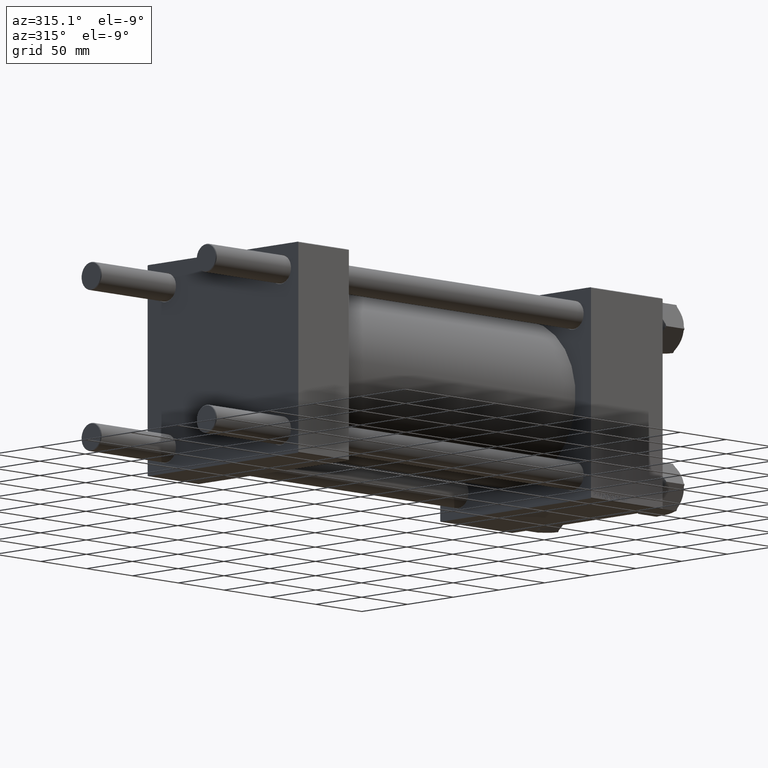
[diagram: clean part render]
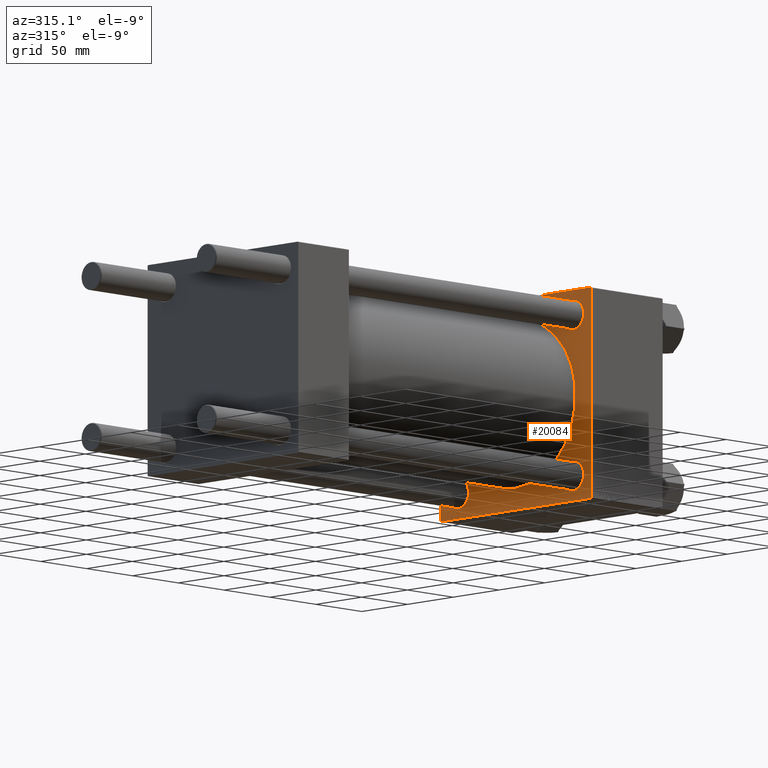
[diagram: same view with one face highlighted and labeled with its STEP entity id]
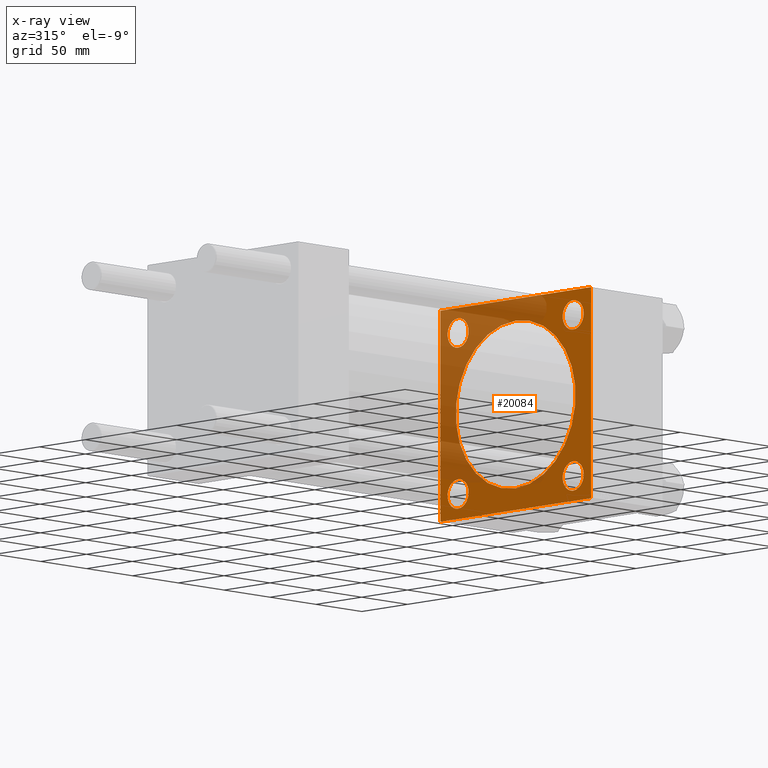
[diagram: x-ray of the same camera — body ghosted, the highlighted face saturated]
A machine part, auxiliary view. The second image highlights one B-rep face of the part: STEP entity #20084.
The next image is the same camera in x-ray: the body ghosted, the highlighted face saturated — about 41% of this face is hidden behind the body in this view.
In plain terms, the highlighted planar face has unit normal (-1, 0, 0).
Its self-contained STEP definition (entity closure, byte-faithful):
#136 = AXIS2_PLACEMENT_3D ( 'NONE', #29384, #49007, #44187 ) ;
#465 = CARTESIAN_POINT ( 'NONE',  ( 319.0000000000000000, -81.99999999999995737, 82.49999999999997158 ) ) ;
#1452 = ORIENTED_EDGE ( 'NONE', *, *, #11687, .T. ) ;
#1697 = CIRCLE ( 'NONE', #35151, 11.50000000000001066 ) ;
#2454 = DIRECTION ( 'NONE',  ( 1.000000000000000000, 0.000000000000000000, -0.000000000000000000 ) ) ;
#2587 = CARTESIAN_POINT ( 'NONE',  ( 319.0000000000000000, -62.94999999999998153, -51.45000000000000995 ) ) ;
#3429 = CIRCLE ( 'NONE', #136, 65.50000000000001421 ) ;
#4310 = CIRCLE ( 'NONE', #44238, 65.50000000000001421 ) ;
#5450 = DIRECTION ( 'NONE',  ( 0.000000000000000000, 0.000000000000000000, 1.000000000000000000 ) ) ;
#5629 = CARTESIAN_POINT ( 'NONE',  ( 319.0000000000000000, 62.95000000000000284, -62.95000000000000284 ) ) ;
#5926 = LINE ( 'NONE', #41373, #10038 ) ;
#6199 = FACE_BOUND ( 'NONE', #38117, .T. ) ;
#6725 = LINE ( 'NONE', #46020, #11547 ) ;
#7055 = ORIENTED_EDGE ( 'NONE', *, *, #32711, .F. ) ;
#7744 = LINE ( 'NONE', #27151, #8973 ) ;
#8258 = DIRECTION ( 'NONE',  ( 0.000000000000000000, -1.682156097916903834E-16, -1.000000000000000000 ) ) ;
#8596 = CARTESIAN_POINT ( 'NONE',  ( 319.0000000000000000, 62.95000000000000284, -74.45000000000001705 ) ) ;
#8634 = ORIENTED_EDGE ( 'NONE', *, *, #13524, .T. ) ;
#8635 = ORIENTED_EDGE ( 'NONE', *, *, #42492, .T. ) ;
#8973 = VECTOR ( 'NONE', #8258, 1000.000000000000000 ) ;
#9463 = CARTESIAN_POINT ( 'NONE',  ( 319.0000000000000000, 82.00000000000001421, 82.50000000000000000 ) ) ;
#9742 = CARTESIAN_POINT ( 'NONE',  ( 319.0000000000000000, -81.99999999999998579, -82.50000000000002842 ) ) ;
#10038 = VECTOR ( 'NONE', #17649, 1000.000000000000000 ) ;
#10129 = ORIENTED_EDGE ( 'NONE', *, *, #40427, .T. ) ;
#10287 = FACE_BOUND ( 'NONE', #38083, .T. ) ;
#10584 = VECTOR ( 'NONE', #36556, 1000.000000000000000 ) ;
#10869 = ORIENTED_EDGE ( 'NONE', *, *, #22886, .F. ) ;
#10933 = CARTESIAN_POINT ( 'NONE',  ( 319.0000000000000000, -62.94999999999998153, 74.44999999999991758 ) ) ;
#11098 = VERTEX_POINT ( 'NONE', #36067 ) ;
#11322 = VERTEX_POINT ( 'NONE', #465 ) ;
#11547 = VECTOR ( 'NONE', #18721, 1000.000000000000114 ) ;
#11651 = EDGE_LOOP ( 'NONE', ( #13823, #42025, #7055, #1452, #10869, #47842, #19361, #34831 ) ) ;
#11687 = EDGE_CURVE ( 'NONE', #47919, #11322, #13144, .T. ) ;
#11699 = CARTESIAN_POINT ( 'NONE',  ( 319.0000000000000000, 0.000000000000000000, 0.000000000000000000 ) ) ;
#11781 = EDGE_CURVE ( 'NONE', #49852, #45481, #26940, .T. ) ;
#12081 = CARTESIAN_POINT ( 'NONE',  ( 319.0000000000000000, -62.94999999999998153, -62.95000000000001705 ) ) ;
#13144 = LINE ( 'NONE', #36136, #49706 ) ;
#13524 = EDGE_CURVE ( 'NONE', #39465, #15963, #1697, .T. ) ;
#13598 = FACE_OUTER_BOUND ( 'NONE', #11651, .T. ) ;
#13823 = ORIENTED_EDGE ( 'NONE', *, *, #21329, .T. ) ;
#13858 = FACE_BOUND ( 'NONE', #35806, .T. ) ;
#14001 = EDGE_CURVE ( 'NONE', #15963, #39465, #15572, .T. ) ;
#14122 = FACE_BOUND ( 'NONE', #22443, .T. ) ;
#14127 = LINE ( 'NONE', #29185, #44940 ) ;
#14195 = DIRECTION ( 'NONE',  ( 0.000000000000000000, 0.000000000000000000, 1.000000000000000000 ) ) ;
#14793 = VECTOR ( 'NONE', #18205, 1000.000000000000114 ) ;
#14951 = CARTESIAN_POINT ( 'NONE',  ( 319.0000000000000000, -62.94999999999998153, -62.95000000000001705 ) ) ;
#15572 = CIRCLE ( 'NONE', #35991, 11.50000000000001066 ) ;
#15963 = VERTEX_POINT ( 'NONE', #20424 ) ;
#16344 = AXIS2_PLACEMENT_3D ( 'NONE', #12081, #23573, #42451 ) ;
#16520 = DIRECTION ( 'NONE',  ( 0.000000000000000000, 0.000000000000000000, 1.000000000000000000 ) ) ;
#16765 = ORIENTED_EDGE ( 'NONE', *, *, #29914, .T. ) ;
#16846 = ORIENTED_EDGE ( 'NONE', *, *, #11781, .T. ) ;
#16935 = DIRECTION ( 'NONE',  ( 1.000000000000000000, 0.000000000000000000, -0.000000000000000000 ) ) ;
#17013 = CARTESIAN_POINT ( 'NONE',  ( 319.0000000000000000, 82.50000000000001421, -82.50000000000002842 ) ) ;
#17312 = AXIS2_PLACEMENT_3D ( 'NONE', #43810, #35925, #16520 ) ;
#17440 = CARTESIAN_POINT ( 'NONE',  ( 319.0000000000000000, -62.94999999999998153, 62.95000000000001705 ) ) ;
#17463 = VERTEX_POINT ( 'NONE', #25654 ) ;
#17649 = DIRECTION ( 'NONE',  ( 0.000000000000000000, -1.000000000000000000, -1.682156097916904081E-16 ) ) ;
#18205 = DIRECTION ( 'NONE',  ( 0.000000000000000000, 0.7071067811865474617, -0.7071067811865474617 ) ) ;
#18721 = DIRECTION ( 'NONE',  ( -0.000000000000000000, -0.7071067811865474617, -0.7071067811865474617 ) ) ;
#19355 = VERTEX_POINT ( 'NONE', #9463 ) ;
#19361 = ORIENTED_EDGE ( 'NONE', *, *, #32019, .T. ) ;
#19459 = AXIS2_PLACEMENT_3D ( 'NONE', #5629, #21206, #28878 ) ;
#20084 = ADVANCED_FACE ( 'NONE', ( #13858, #25613, #6199, #10287, #14122, #13598 ), #44993, .T. ) ;
#20424 = CARTESIAN_POINT ( 'NONE',  ( 319.0000000000000000, 62.95000000000000284, 51.44999999999999574 ) ) ;
#21206 = DIRECTION ( 'NONE',  ( 1.000000000000000000, 0.000000000000000000, -0.000000000000000000 ) ) ;
#21329 = EDGE_CURVE ( 'NONE', #17463, #29000, #47655, .T. ) ;
#21370 = EDGE_CURVE ( 'NONE', #23692, #41919, #45045, .T. ) ;
#21709 = DIRECTION ( 'NONE',  ( 1.000000000000000000, 0.000000000000000000, -0.000000000000000000 ) ) ;
#21898 = CARTESIAN_POINT ( 'NONE',  ( 319.0000000000000000, -62.94999999999998153, -74.45000000000003126 ) ) ;
#21994 = EDGE_CURVE ( 'NONE', #36710, #22628, #4310, .T. ) ;
#22303 = CARTESIAN_POINT ( 'NONE',  ( 319.0000000000000000, 62.95000000000000284, 62.95000000000000284 ) ) ;
#22443 = EDGE_LOOP ( 'NONE', ( #10129, #25359 ) ) ;
#22628 = VERTEX_POINT ( 'NONE', #34315 ) ;
#22886 = EDGE_CURVE ( 'NONE', #19355, #11322, #5926, .T. ) ;
#23428 = CARTESIAN_POINT ( 'NONE',  ( 319.0000000000000000, -82.50000000000000000, -82.00000000000002842 ) ) ;
#23573 = DIRECTION ( 'NONE',  ( 1.000000000000000000, 0.000000000000000000, -0.000000000000000000 ) ) ;
#23692 = VERTEX_POINT ( 'NONE', #28978 ) ;
#23862 = AXIS2_PLACEMENT_3D ( 'NONE', #17440, #16935, #5450 ) ;
#24403 = CARTESIAN_POINT ( 'NONE',  ( 319.0000000000000000, 62.95000000000000284, -62.95000000000000284 ) ) ;
#24446 = ORIENTED_EDGE ( 'NONE', *, *, #14001, .T. ) ;
#24627 = CARTESIAN_POINT ( 'NONE',  ( 319.0000000000000000, 82.50000000000001421, 82.00000000000000000 ) ) ;
#25359 = ORIENTED_EDGE ( 'NONE', *, *, #21994, .T. ) ;
#25556 = CARTESIAN_POINT ( 'NONE',  ( 319.0000000000000000, 62.95000000000000284, 62.95000000000000284 ) ) ;
#25613 = FACE_BOUND ( 'NONE', #42233, .T. ) ;
#25654 = CARTESIAN_POINT ( 'NONE',  ( 319.0000000000000000, 82.00000000000001421, -82.50000000000002842 ) ) ;
#25855 = DIRECTION ( 'NONE',  ( -1.000000000000000000, -0.000000000000000000, 0.000000000000000000 ) ) ;
#26385 = EDGE_CURVE ( 'NONE', #45481, #49852, #44612, .T. ) ;
#26784 = CIRCLE ( 'NONE', #19459, 11.50000000000001066 ) ;
#26940 = CIRCLE ( 'NONE', #16344, 11.50000000000001066 ) ;
#27151 = CARTESIAN_POINT ( 'NONE',  ( 319.0000000000000000, -82.49999999999997158, 82.49999999999997158 ) ) ;
#27938 = VECTOR ( 'NONE', #44314, 1000.000000000000000 ) ;
#28405 = CARTESIAN_POINT ( 'NONE',  ( 319.0000000000000000, 82.50000000000001421, 82.50000000000000000 ) ) ;
#28788 = ORIENTED_EDGE ( 'NONE', *, *, #41060, .T. ) ;
#28878 = DIRECTION ( 'NONE',  ( 0.000000000000000000, 0.000000000000000000, 1.000000000000000000 ) ) ;
#28978 = CARTESIAN_POINT ( 'NONE',  ( 319.0000000000000000, -62.94999999999998153, 51.45000000000012363 ) ) ;
#29000 = VERTEX_POINT ( 'NONE', #9742 ) ;
#29185 = CARTESIAN_POINT ( 'NONE',  ( 319.0000000000000000, -82.24999999999886313, -82.25000000000115108 ) ) ;
#29223 = DIRECTION ( 'NONE',  ( -0.000000000000000000, 0.7071067811865574537, 0.7071067811865376918 ) ) ;
#29384 = CARTESIAN_POINT ( 'NONE',  ( 319.0000000000000000, 0.000000000000000000, 0.000000000000000000 ) ) ;
#29914 = EDGE_CURVE ( 'NONE', #38675, #30354, #26784, .T. ) ;
#30354 = VERTEX_POINT ( 'NONE', #8596 ) ;
#31203 = CARTESIAN_POINT ( 'NONE',  ( 319.0000000000000000, 62.95000000000000284, 74.45000000000001705 ) ) ;
#31823 = DIRECTION ( 'NONE',  ( 0.000000000000000000, 0.000000000000000000, 1.000000000000000000 ) ) ;
#32019 = EDGE_CURVE ( 'NONE', #36748, #11098, #37057, .T. ) ;
#32456 = CARTESIAN_POINT ( 'NONE',  ( 319.0000000000000000, 62.95000000000000284, -51.44999999999999574 ) ) ;
#32711 = EDGE_CURVE ( 'NONE', #47919, #46777, #7744, .T. ) ;
#33269 = DIRECTION ( 'NONE',  ( 1.000000000000000000, 0.000000000000000000, -0.000000000000000000 ) ) ;
#34315 = CARTESIAN_POINT ( 'NONE',  ( 319.0000000000000000, 0.000000000000000000, 65.50000000000001421 ) ) ;
#34506 = ORIENTED_EDGE ( 'NONE', *, *, #21370, .T. ) ;
#34831 = ORIENTED_EDGE ( 'NONE', *, *, #40308, .T. ) ;
#35151 = AXIS2_PLACEMENT_3D ( 'NONE', #25556, #21709, #37271 ) ;
#35641 = DIRECTION ( 'NONE',  ( 1.000000000000000000, 0.000000000000000000, -0.000000000000000000 ) ) ;
#35692 = CARTESIAN_POINT ( 'NONE',  ( 319.0000000000000000, -82.49999999999997158, 81.99999999999997158 ) ) ;
#35806 = EDGE_LOOP ( 'NONE', ( #8635, #34506 ) ) ;
#35925 = DIRECTION ( 'NONE',  ( 1.000000000000000000, 0.000000000000000000, -0.000000000000000000 ) ) ;
#35991 = AXIS2_PLACEMENT_3D ( 'NONE', #22303, #33269, #48563 ) ;
#36067 = CARTESIAN_POINT ( 'NONE',  ( 319.0000000000000000, 82.50000000000001421, -82.00000000000002842 ) ) ;
#36136 = CARTESIAN_POINT ( 'NONE',  ( 319.0000000000000000, -82.24999999999882050, 82.25000000000110845 ) ) ;
#36556 = DIRECTION ( 'NONE',  ( 0.000000000000000000, 0.000000000000000000, -1.000000000000000000 ) ) ;
#36710 = VERTEX_POINT ( 'NONE', #41361 ) ;
#36748 = VERTEX_POINT ( 'NONE', #24627 ) ;
#37057 = LINE ( 'NONE', #28405, #10584 ) ;
#37271 = DIRECTION ( 'NONE',  ( 0.000000000000000000, 0.000000000000000000, 1.000000000000000000 ) ) ;
#38083 = EDGE_LOOP ( 'NONE', ( #16846, #45521 ) ) ;
#38117 = EDGE_LOOP ( 'NONE', ( #16765, #28788 ) ) ;
#38488 = DIRECTION ( 'NONE',  ( 1.000000000000000000, 0.000000000000000000, 0.000000000000000000 ) ) ;
#38587 = LINE ( 'NONE', #41916, #14793 ) ;
#38675 = VERTEX_POINT ( 'NONE', #32456 ) ;
#39249 = EDGE_CURVE ( 'NONE', #29000, #46777, #14127, .T. ) ;
#39392 = EDGE_CURVE ( 'NONE', #19355, #36748, #38587, .T. ) ;
#39465 = VERTEX_POINT ( 'NONE', #31203 ) ;
#40100 = CIRCLE ( 'NONE', #44185, 11.50000000000001066 ) ;
#40308 = EDGE_CURVE ( 'NONE', #11098, #17463, #6725, .T. ) ;
#40427 = EDGE_CURVE ( 'NONE', #22628, #36710, #3429, .T. ) ;
#40530 = AXIS2_PLACEMENT_3D ( 'NONE', #14951, #2454, #14195 ) ;
#41060 = EDGE_CURVE ( 'NONE', #30354, #38675, #40100, .T. ) ;
#41361 = CARTESIAN_POINT ( 'NONE',  ( 319.0000000000000000, 8.021436534415166404E-15, -65.50000000000001421 ) ) ;
#41373 = CARTESIAN_POINT ( 'NONE',  ( 319.0000000000000000, 82.50000000000001421, 82.50000000000000000 ) ) ;
#41401 = DIRECTION ( 'NONE',  ( 0.000000000000000000, 0.000000000000000000, 1.000000000000000000 ) ) ;
#41916 = CARTESIAN_POINT ( 'NONE',  ( 319.0000000000000000, 82.25000000000000000, 82.25000000000000000 ) ) ;
#41919 = VERTEX_POINT ( 'NONE', #10933 ) ;
#42025 = ORIENTED_EDGE ( 'NONE', *, *, #39249, .T. ) ;
#42233 = EDGE_LOOP ( 'NONE', ( #8634, #24446 ) ) ;
#42451 = DIRECTION ( 'NONE',  ( 0.000000000000000000, 0.000000000000000000, 1.000000000000000000 ) ) ;
#42492 = EDGE_CURVE ( 'NONE', #41919, #23692, #45876, .T. ) ;
#42816 = DIRECTION ( 'NONE',  ( 0.000000000000000000, 0.000000000000000000, -1.000000000000000000 ) ) ;
#43810 = CARTESIAN_POINT ( 'NONE',  ( 319.0000000000000000, -62.94999999999998153, 62.95000000000001705 ) ) ;
#44185 = AXIS2_PLACEMENT_3D ( 'NONE', #24403, #35641, #31823 ) ;
#44187 = DIRECTION ( 'NONE',  ( 0.000000000000000000, 0.000000000000000000, -1.000000000000000000 ) ) ;
#44238 = AXIS2_PLACEMENT_3D ( 'NONE', #11699, #38488, #42816 ) ;
#44314 = DIRECTION ( 'NONE',  ( 0.000000000000000000, -1.000000000000000000, 0.000000000000000000 ) ) ;
#44612 = CIRCLE ( 'NONE', #40530, 11.50000000000001066 ) ;
#44940 = VECTOR ( 'NONE', #48319, 999.9999999999998863 ) ;
#44993 = PLANE ( 'NONE',  #45120 ) ;
#45045 = CIRCLE ( 'NONE', #17312, 11.49999999999989875 ) ;
#45120 = AXIS2_PLACEMENT_3D ( 'NONE', #45507, #25855, #41401 ) ;
#45481 = VERTEX_POINT ( 'NONE', #21898 ) ;
#45507 = CARTESIAN_POINT ( 'NONE',  ( 319.0000000000000000, 0.000000000000000000, 0.000000000000000000 ) ) ;
#45521 = ORIENTED_EDGE ( 'NONE', *, *, #26385, .T. ) ;
#45876 = CIRCLE ( 'NONE', #23862, 11.49999999999989875 ) ;
#46020 = CARTESIAN_POINT ( 'NONE',  ( 319.0000000000000000, 82.25000000000001421, -82.25000000000001421 ) ) ;
#46777 = VERTEX_POINT ( 'NONE', #23428 ) ;
#47655 = LINE ( 'NONE', #17013, #27938 ) ;
#47842 = ORIENTED_EDGE ( 'NONE', *, *, #39392, .T. ) ;
#47919 = VERTEX_POINT ( 'NONE', #35692 ) ;
#48319 = DIRECTION ( 'NONE',  ( 0.000000000000000000, -0.7071067811865574537, 0.7071067811865376918 ) ) ;
#48563 = DIRECTION ( 'NONE',  ( 0.000000000000000000, 0.000000000000000000, 1.000000000000000000 ) ) ;
#49007 = DIRECTION ( 'NONE',  ( 1.000000000000000000, 0.000000000000000000, 0.000000000000000000 ) ) ;
#49706 = VECTOR ( 'NONE', #29223, 999.9999999999998863 ) ;
#49852 = VERTEX_POINT ( 'NONE', #2587 ) ;